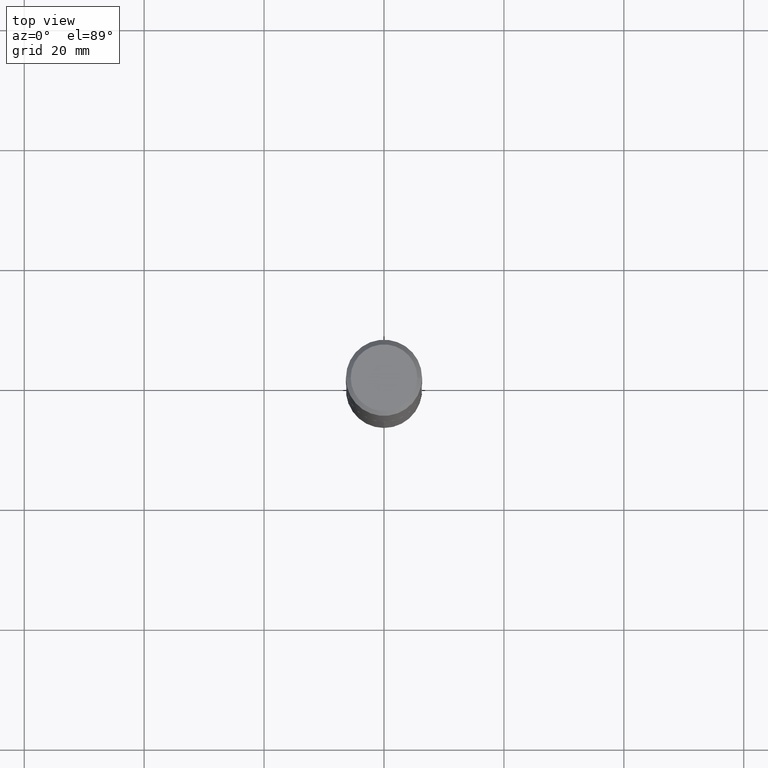
[diagram: clean part render]
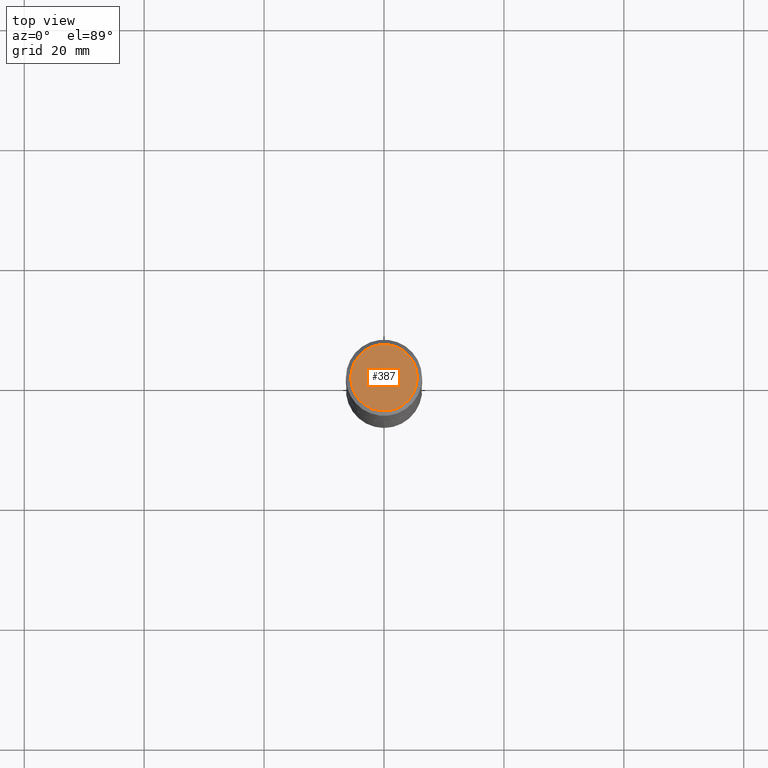
[diagram: same view with one face highlighted and labeled with its STEP entity id]
A machine part, top view. The second image highlights one B-rep face of the part: STEP entity #387.
In plain terms, the highlighted planar face has unit normal (0, -0, -1).
Its self-contained STEP definition (entity closure, byte-faithful):
#1 = DIRECTION ( 'NONE',  ( 1.000000000000000000, -6.982962677686266711E-15, 4.876188151940832700E-29 ) ) ;
#34 = CARTESIAN_POINT ( 'NONE',  ( -2.335971725809272108E-47, 3.335148527799636409E-33, 9.552245033349346191E-19 ) ) ;
#50 = PLANE ( 'NONE',  #373 ) ;
#57 = DIRECTION ( 'NONE',  ( -2.445468806185136597E-29, 3.491481338843145583E-15, 1.000000000000000000 ) ) ;
#99 = CARTESIAN_POINT ( 'NONE',  ( 0.2187500000000000000, -1.662483614147127260E-15, 9.552245033460884497E-19 ) ) ;
#102 = DIRECTION ( 'NONE',  ( -1.000000000000000000, 6.982962677686265922E-15, -4.876176775795935793E-29 ) ) ;
#110 = CIRCLE ( 'NONE', #249, 0.2187500000000000000 ) ;
#143 = CARTESIAN_POINT ( 'NONE',  ( -1.167985862904636054E-47, 1.667574263899818204E-33, 4.776122516674673095E-19 ) ) ;
#157 = AXIS2_PLACEMENT_3D ( 'NONE', #34, #57, #1 ) ;
#176 = VERTEX_POINT ( 'NONE', #364 ) ;
#231 = DIRECTION ( 'NONE',  ( -2.445468806185136597E-29, 3.491481338843145583E-15, 1.000000000000000000 ) ) ;
#249 = AXIS2_PLACEMENT_3D ( 'NONE', #329, #231, #291 ) ;
#259 = ORIENTED_EDGE ( 'NONE', *, *, #275, .T. ) ;
#275 = EDGE_CURVE ( 'NONE', #176, #287, #110, .T. ) ;
#278 = EDGE_CURVE ( 'NONE', #287, #176, #341, .T. ) ;
#287 = VERTEX_POINT ( 'NONE', #99 ) ;
#291 = DIRECTION ( 'NONE',  ( 1.000000000000000000, -6.982962677686266711E-15, 4.876188151940832700E-29 ) ) ;
#329 = CARTESIAN_POINT ( 'NONE',  ( -2.335971725809272108E-47, 3.335148527799636409E-33, 9.552245033349346191E-19 ) ) ;
#333 = FACE_OUTER_BOUND ( 'NONE', #372, .T. ) ;
#341 = CIRCLE ( 'NONE', #157, 0.2187500000000000000 ) ;
#364 = CARTESIAN_POINT ( 'NONE',  ( -0.2187500000000000000, 1.582077481663294210E-15, 9.552245033240612038E-19 ) ) ;
#366 = DIRECTION ( 'NONE',  ( 2.438088387897960049E-29, -3.491481338843145188E-15, -1.000000000000000000 ) ) ;
#372 = EDGE_LOOP ( 'NONE', ( #259, #378 ) ) ;
#373 = AXIS2_PLACEMENT_3D ( 'NONE', #143, #366, #102 ) ;
#378 = ORIENTED_EDGE ( 'NONE', *, *, #278, .T. ) ;
#387 = ADVANCED_FACE ( 'NONE', ( #333 ), #50, .F. ) ;